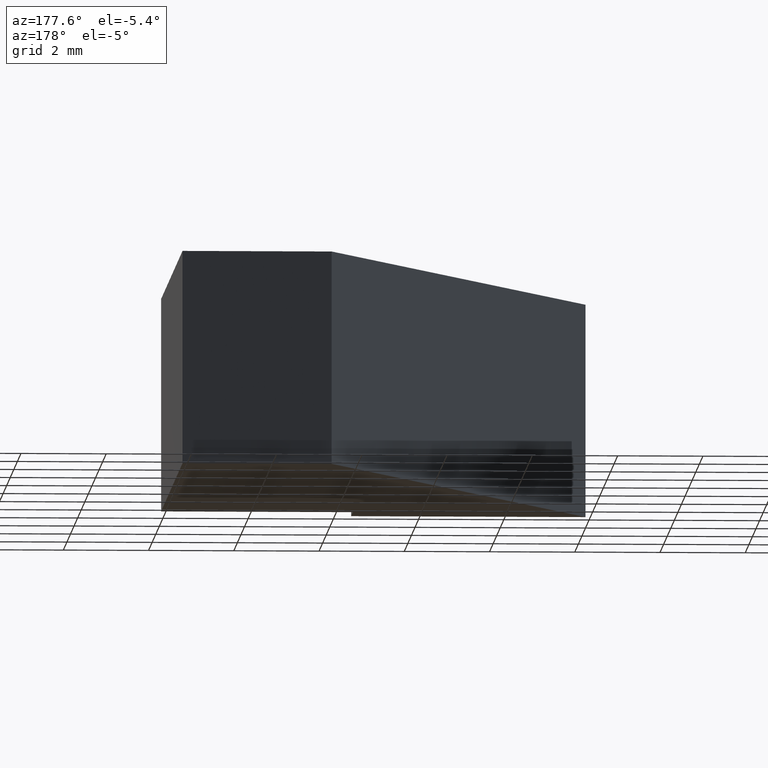
[diagram: clean part render]
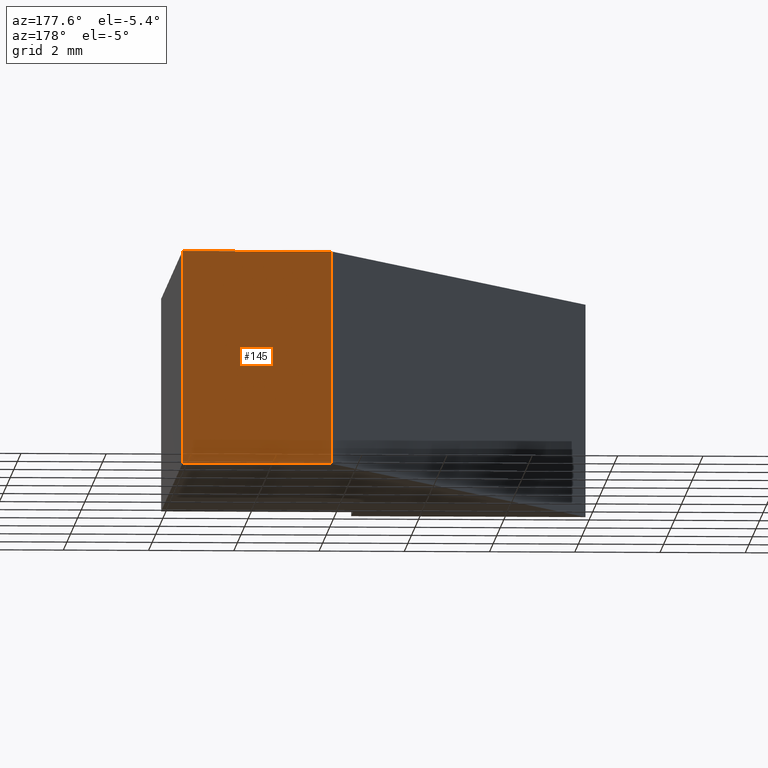
[diagram: same view with one face highlighted and labeled with its STEP entity id]
A machine part, auxiliary view. The second image highlights one B-rep face of the part: STEP entity #145.
In plain terms, the highlighted planar face has unit normal (-0, 1, 0).
Its self-contained STEP definition (entity closure, byte-faithful):
#19=FACE_OUTER_BOUND('',#27,.T.);
#27=EDGE_LOOP('',(#115,#116,#117,#118));
#36=LINE('',#229,#54);
#43=LINE('',#243,#61);
#44=LINE('',#246,#62);
#45=LINE('',#247,#63);
#54=VECTOR('',#189,10.);
#61=VECTOR('',#202,10.);
#62=VECTOR('',#205,10.);
#63=VECTOR('',#206,10.);
#68=VERTEX_POINT('',#219);
#72=VERTEX_POINT('',#227);
#76=VERTEX_POINT('',#241);
#77=VERTEX_POINT('',#245);
#84=EDGE_CURVE('',#68,#72,#36,.T.);
#91=EDGE_CURVE('',#76,#72,#43,.T.);
#92=EDGE_CURVE('',#76,#77,#44,.T.);
#93=EDGE_CURVE('',#77,#68,#45,.T.);
#115=ORIENTED_EDGE('',*,*,#92,.T.);
#116=ORIENTED_EDGE('',*,*,#93,.T.);
#117=ORIENTED_EDGE('',*,*,#84,.T.);
#118=ORIENTED_EDGE('',*,*,#91,.F.);
#137=PLANE('',#176);
#145=ADVANCED_FACE('',(#19),#137,.T.);
#176=AXIS2_PLACEMENT_3D('',#244,#203,#204);
#189=DIRECTION('',(-1.,-6.34413156928661E-16,0.));
#202=DIRECTION('',(0.,0.,-1.));
#203=DIRECTION('center_axis',(-6.34413156928661E-16,1.,0.));
#204=DIRECTION('ref_axis',(0.,0.,1.));
#205=DIRECTION('',(1.,6.34413156928661E-16,0.));
#206=DIRECTION('',(0.,0.,-1.));
#219=CARTESIAN_POINT('',(0.,13.,-2.5));
#227=CARTESIAN_POINT('',(-3.5,13.,-2.5));
#229=CARTESIAN_POINT('',(-3.5,13.,-2.5));
#241=CARTESIAN_POINT('',(-3.5,13.,2.5));
#243=CARTESIAN_POINT('',(-3.5,13.,0.));
#244=CARTESIAN_POINT('Origin',(-3.5,13.,0.));
#245=CARTESIAN_POINT('',(0.,13.,2.5));
#246=CARTESIAN_POINT('',(-3.5,13.,2.5));
#247=CARTESIAN_POINT('',(0.,13.,0.));